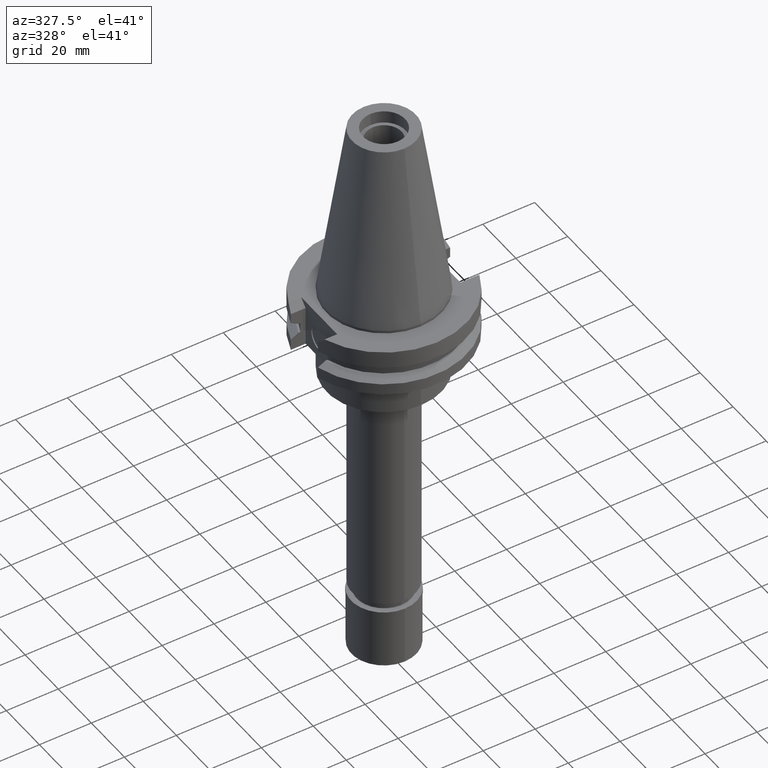
[diagram: clean part render]
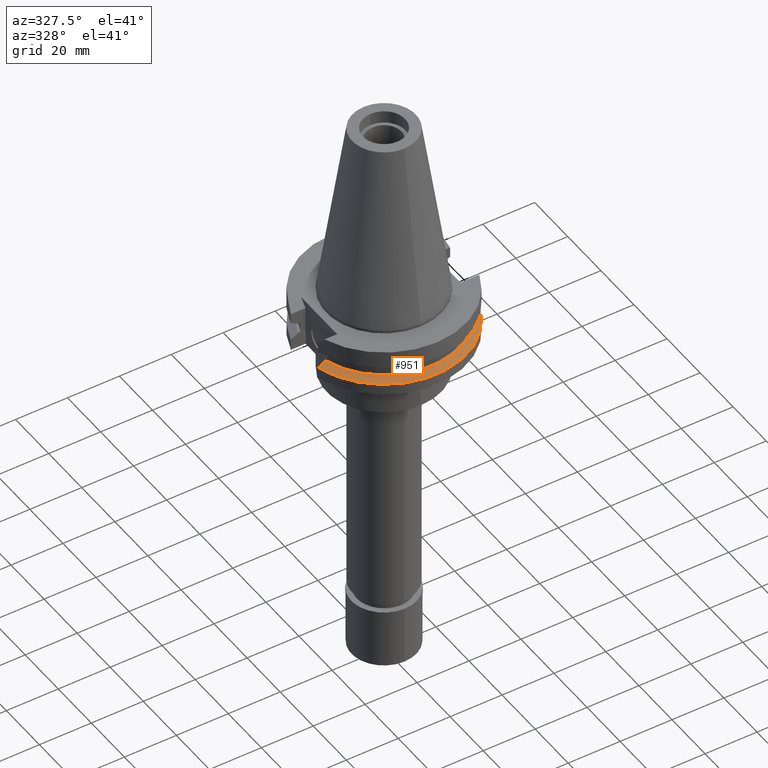
[diagram: same view with one face highlighted and labeled with its STEP entity id]
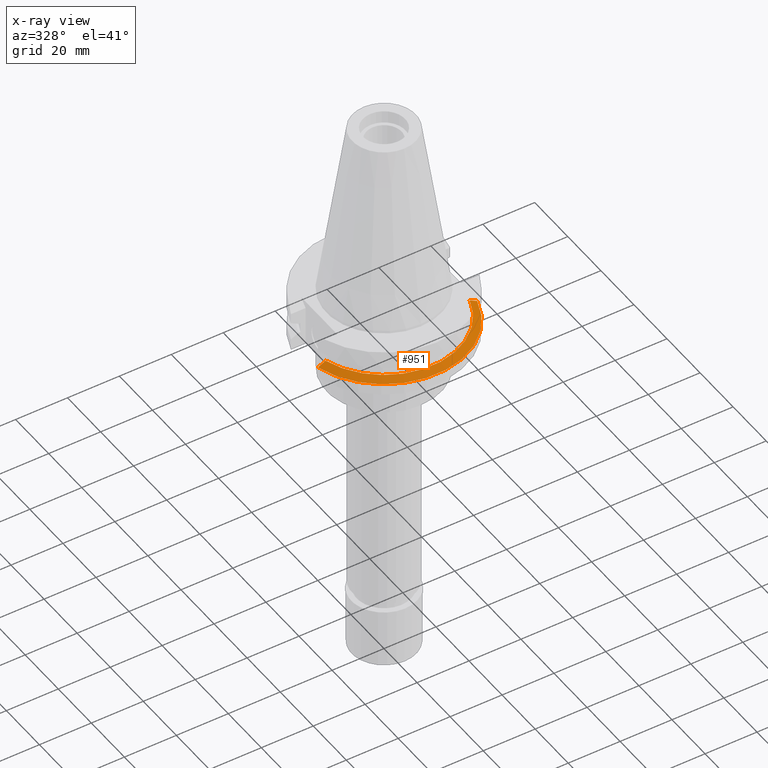
[diagram: x-ray of the same camera — body ghosted, the highlighted face saturated]
A machine part, auxiliary view. The second image highlights one B-rep face of the part: STEP entity #951.
The next image is the same camera in x-ray: the body ghosted, the highlighted face saturated — about 0% of this face is hidden behind the body in this view.
In plain terms, the highlighted conical surface has half-angle 60 deg.
Its self-contained STEP definition (entity closure, byte-faithful):
#138 = CARTESIAN_POINT ( 'NONE',  ( 0.0000000000000000000, 0.0000000000000000000, -13.04749999999999943 ) ) ;
#192 = CARTESIAN_POINT ( 'NONE',  ( -29.69566455340000033, -8.189999973374000319, -14.10749314801000054 ) ) ;
#193 = CARTESIAN_POINT ( 'NONE',  ( 28.10004461613999638, -8.190000190935000646, -13.22132518286000114 ) ) ;
#333 = DIRECTION ( 'NONE',  ( 0.0000000000000000000, -1.000000000000000000, 0.0000000000000000000 ) ) ;
#340 = AXIS2_PLACEMENT_3D ( 'NONE', #2046, #760, #2773 ) ;
#349 = DIRECTION ( 'NONE',  ( 0.0000000000000000000, -1.000000000000000000, 0.0000000000000000000 ) ) ;
#430 = CARTESIAN_POINT ( 'NONE',  ( -30.67550165945999652, -8.189999874273000913, -14.65366564556999940 ) ) ;
#591 = VERTEX_POINT ( 'NONE', #2795 ) ;
#666 = CARTESIAN_POINT ( 'NONE',  ( -30.34729379024999929, -8.189999874273000913, -14.47058758318999949 ) ) ;
#760 = DIRECTION ( 'NONE',  ( 0.0000000000000000000, 0.0000000000000000000, -1.000000000000000000 ) ) ;
#895 = EDGE_CURVE ( 'NONE', #1911, #591, #2420, .T. ) ;
#951 = ADVANCED_FACE ( 'NONE', ( #2895 ), #2151, .T. ) ;
#980 = CARTESIAN_POINT ( 'NONE',  ( 29.69566312627999594, -8.189999742464999954, -14.10748969191000057 ) ) ;
#998 = CARTESIAN_POINT ( 'NONE',  ( 30.67550146398999900, -8.190000606413999407, -14.65367218811000072 ) ) ;
#1155 = DIRECTION ( 'NONE',  ( 0.0000000000000000000, 0.0000000000000000000, -1.000000000000000000 ) ) ;
#1498 = CARTESIAN_POINT ( 'NONE',  ( 27.78616453828999866, -8.190000190935000646, -13.04749999999999943 ) ) ;
#1635 = CARTESIAN_POINT ( 'NONE',  ( 27.78616453828999866, -8.190000190935000646, -13.04749999999999943 ) ) ;
#1687 = B_SPLINE_CURVE_WITH_KNOTS ( 'NONE', 3,
 ( #3239, #666, #192, #3304, #2818, #2290 ),
 .UNSPECIFIED., .F., .F.,
 ( 4, 1, 1, 4 ),
 ( 0.0000000000000000000, 0.3333333333333000081, 0.6666666666667000474, 1.000000000000000000 ),
 .UNSPECIFIED. ) ;
#1875 = CARTESIAN_POINT ( 'NONE',  ( 0.0000000000000000000, 0.0000000000000000000, -13.85058338454000015 ) ) ;
#1911 = VERTEX_POINT ( 'NONE', #1635 ) ;
#2011 = CARTESIAN_POINT ( 'NONE',  ( 30.34728775510999910, -8.190000606413999407, -14.47059087180999981 ) ) ;
#2046 = CARTESIAN_POINT ( 'NONE',  ( 0.0000000000000000000, 0.0000000000000000000, -14.65366676908000088 ) ) ;
#2150 = EDGE_CURVE ( 'NONE', #2213, #2540, #3139, .T. ) ;
#2151 = CONICAL_SURFACE ( 'NONE', #3298, 30.35901877526999826, 1.047197551196400456 ) ;
#2213 = VERTEX_POINT ( 'NONE', #2277 ) ;
#2224 = EDGE_CURVE ( 'NONE', #1911, #2213, #2533, .T. ) ;
#2277 = CARTESIAN_POINT ( 'NONE',  ( 30.67550146398999900, -8.190000606413999407, -14.65367218811000072 ) ) ;
#2290 = CARTESIAN_POINT ( 'NONE',  ( -27.78617704655999887, -8.189999360263000128, -13.04749999999999943 ) ) ;
#2312 = ORIENTED_EDGE ( 'NONE', *, *, #2150, .F. ) ;
#2362 = AXIS2_PLACEMENT_3D ( 'NONE', #138, #1155, #349 ) ;
#2417 = ORIENTED_EDGE ( 'NONE', *, *, #895, .T. ) ;
#2420 = CIRCLE ( 'NONE', #2362, 28.96803755052999918 ) ;
#2533 = B_SPLINE_CURVE_WITH_KNOTS ( 'NONE', 3,
 ( #1498, #193, #3319, #980, #2011, #998 ),
 .UNSPECIFIED., .F., .F.,
 ( 4, 1, 1, 4 ),
 ( 0.0000000000000000000, 0.3333333333333000081, 0.6666666666667000474, 1.000000000000000000 ),
 .UNSPECIFIED. ) ;
#2540 = VERTEX_POINT ( 'NONE', #430 ) ;
#2571 = EDGE_CURVE ( 'NONE', #2540, #591, #1687, .T. ) ;
#2773 = DIRECTION ( 'NONE',  ( 0.9661575315241073270, -0.2579527559055020958, 0.0000000000000000000 ) ) ;
#2794 = ORIENTED_EDGE ( 'NONE', *, *, #2224, .F. ) ;
#2795 = CARTESIAN_POINT ( 'NONE',  ( -27.78617704655999887, -8.189999360263000128, -13.04749999999999943 ) ) ;
#2818 = CARTESIAN_POINT ( 'NONE',  ( -28.10004470173000257, -8.189999360263000128, -13.22131830782999984 ) ) ;
#2895 = FACE_OUTER_BOUND ( 'NONE', #3028, .T. ) ;
#2914 = DIRECTION ( 'NONE',  ( 0.0000000000000000000, 0.0000000000000000000, -1.000000000000000000 ) ) ;
#3028 = EDGE_LOOP ( 'NONE', ( #2794, #2417, #3124, #2312 ) ) ;
#3124 = ORIENTED_EDGE ( 'NONE', *, *, #2571, .F. ) ;
#3139 = CIRCLE ( 'NONE', #340, 31.74999999999998579 ) ;
#3239 = CARTESIAN_POINT ( 'NONE',  ( -30.67550165945999652, -8.189999874273000913, -14.65366564556999940 ) ) ;
#3298 = AXIS2_PLACEMENT_3D ( 'NONE', #1875, #2914, #333 ) ;
#3304 = CARTESIAN_POINT ( 'NONE',  ( -28.73256683110000154, -8.190000281779999725, -13.57208462352999767 ) ) ;
#3319 = CARTESIAN_POINT ( 'NONE',  ( 28.73256186084000063, -8.189999991751999886, -13.57207902543999900 ) ) ;